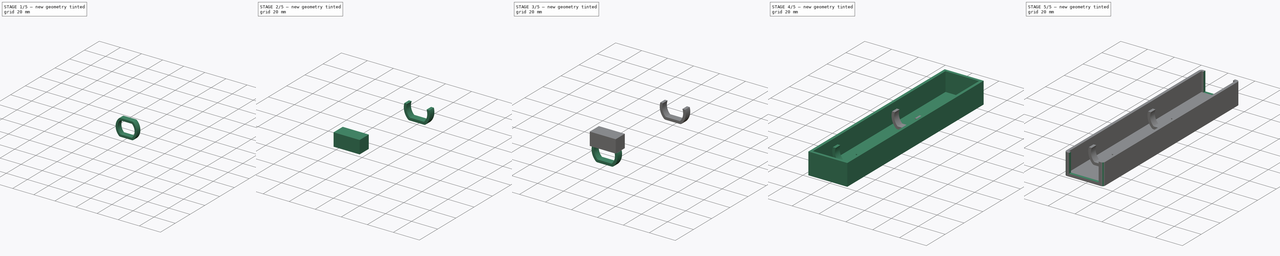
[diagram: build sequence overview — one tinted view per stage of 5, left to right]
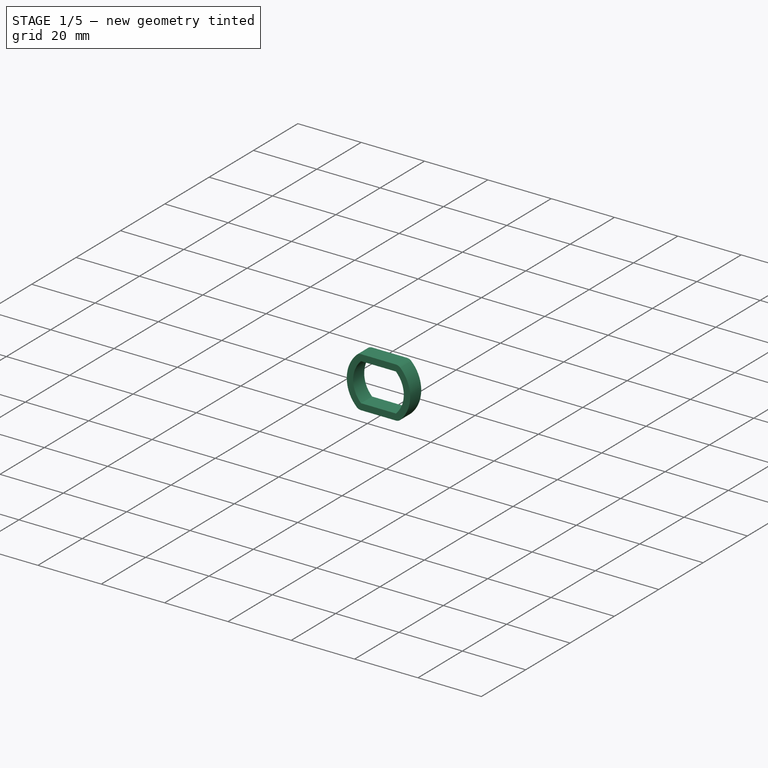
[diagram: stage 1 of 5 — iso view after this stage's code; geometry added in this stage tinted green]
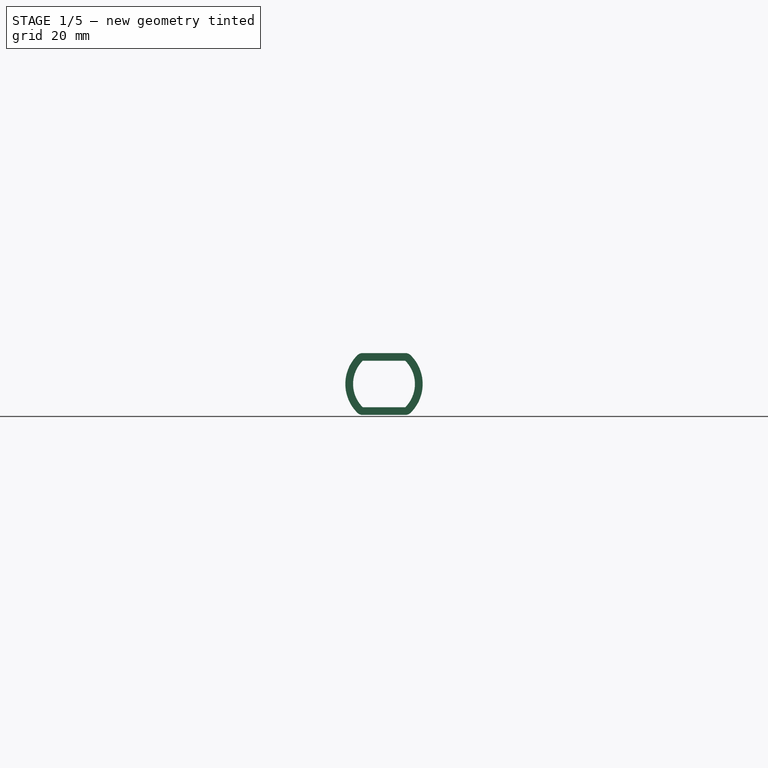
[diagram: stage 1 of 5 — front view after this stage's code; geometry added in this stage tinted green]
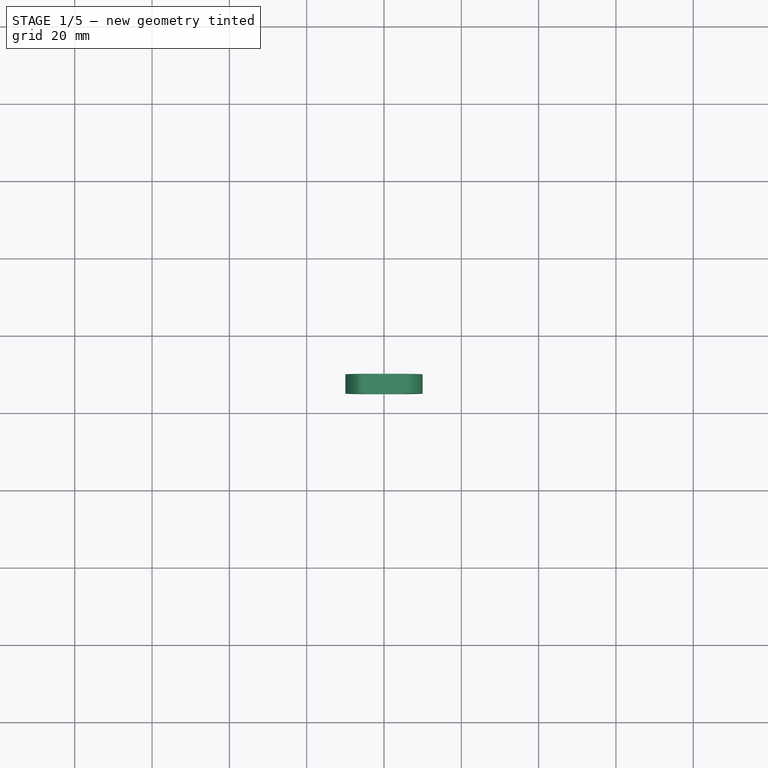
[diagram: stage 1 of 5 — top view after this stage's code; geometry added in this stage tinted green]
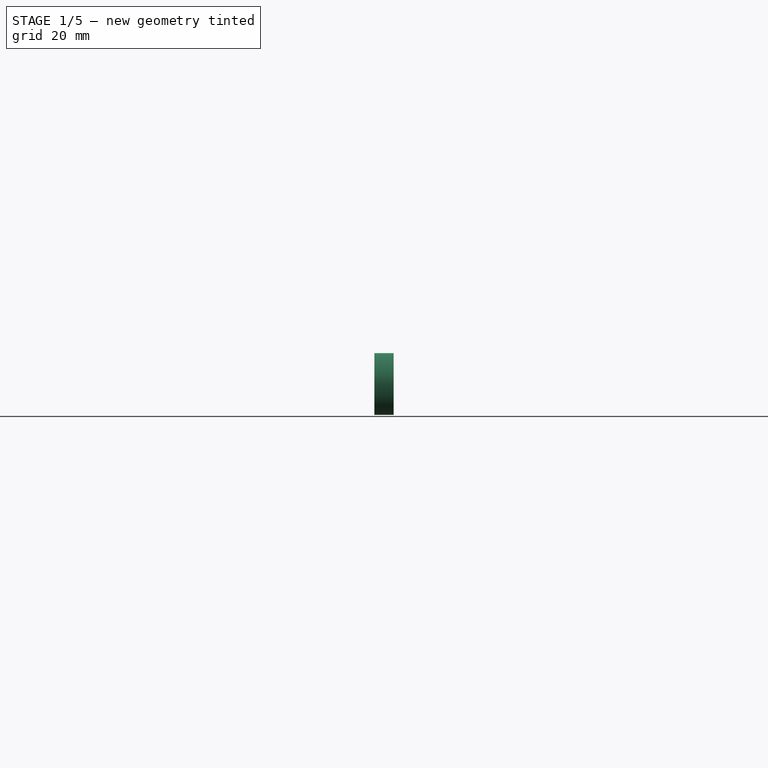
[diagram: stage 1 of 5 — right view after this stage's code; geometry added in this stage tinted green]
FCSTD DOCUMENT  (FreeCAD 0.19R24267 +99 (Git))
Label: windowOpener_actuatorCover
License: All rights reserved
LicenseURL: http://en.wikipedia.org/wiki/All_rights_reserved
objects: Sketcher::SketchObject×7, PartDesign::Pad×4, Part::Cut×4, PartDesign::Body×2, Part::Offset2D×2, Part::Extrusion×2, Part::Box×2, PartDesign::Fillet×1, PartDesign::Pocket×1, Part::MultiFuse×1
note: 32 computed .brp shape members not serialized (recipe doc carries the construction recipe); baked Part::Feature solids carry a one-line shape summary decoded from their .brp

FEATURE [Sketcher::SketchObject] Sketch005
  FullyConstrained = true
  MapMode = 5
  Placement = pos=(0,0,0) rot=(1,0,0;1.5708rad)
  sketch-geometry (6):
    g0: LineSegment StartX=-5.5 StartY=6 StartZ=0 EndX=5.5 EndY=6 EndZ=0
    g1: LineSegment StartX=-5.5 StartY=-6 StartZ=0 EndX=5.5 EndY=-6 EndZ=0
    g2: ArcOfCircle CenterX=0.45 CenterY=1e-16 CenterZ=0 NormalX=0 NormalY=0 NormalZ=1 AngleXU=0 Radius=8.45 StartAngle=2.35201 EndAngle=3.93117
    g3: GeomPoint X=-8 Y=0 Z=0
    g4: ArcOfCircle CenterX=-0.45 CenterY=1e-16 CenterZ=0 NormalX=0 NormalY=0 NormalZ=1 AngleXU=0 Radius=8.45 StartAngle=5.4936 EndAngle=7.07277
    g5: GeomPoint X=8 Y=0 Z=0
  constraints (14):
    c: DistanceX(g0,g0) = 11
    c: Symmetric(g0,g0,g-2)
    c: Symmetric(g1,g1,g-2)
    c: DistanceY(g1,g0) = 12
    c: Symmetric(g0,g1,g-1)
    c: Coincident(g2,g0)
    c: Coincident(g2,g1)
    c: PointOnObject(g3,g2)
    c: PointOnObject(g3,g-1)
    c: Coincident(g4,g0)
    c: Coincident(g4,g1)
    c: PointOnObject(g5,g4)
    c: DistanceX(g3,g5) = 16
    c: Symmetric(g5,g3,g-2)
FEATURE [Sketcher::SketchObject] Sketch006
  FullyConstrained = true
  MapMode = 5
  Placement = pos=(0,0,0) rot=(1,0,0;1.5708rad)
  sketch-geometry (6):
    g0: LineSegment StartX=-5.5 StartY=6 StartZ=0 EndX=5.5 EndY=6 EndZ=0
    g1: LineSegment StartX=-5.5 StartY=-6 StartZ=0 EndX=5.5 EndY=-6 EndZ=0
    g2: ArcOfCircle CenterX=0.45 CenterY=1e-16 CenterZ=0 NormalX=0 NormalY=0 NormalZ=1 AngleXU=0 Radius=8.45 StartAngle=2.35201 EndAngle=3.93117
    g3: GeomPoint X=-8 Y=0 Z=0
    g4: ArcOfCircle CenterX=-0.45 CenterY=1e-16 CenterZ=0 NormalX=0 NormalY=0 NormalZ=1 AngleXU=0 Radius=8.45 StartAngle=5.4936 EndAngle=7.07277
    g5: GeomPoint X=8 Y=0 Z=0
  constraints (14):
    c: DistanceX(g0,g0) = 11
    c: Symmetric(g0,g0,g-2)
    c: Symmetric(g1,g1,g-2)
    c: DistanceY(g1,g0) = 12
    c: Symmetric(g0,g1,g-1)
    c: Coincident(g2,g0)
    c: Coincident(g2,g1)
    c: PointOnObject(g3,g2)
    c: PointOnObject(g3,g-1)
    c: Coincident(g4,g0)
    c: Coincident(g4,g1)
    c: PointOnObject(g5,g4)
    c: DistanceX(g3,g5) = 16
    c: Symmetric(g5,g3,g-2)
FEATURE [Part::Offset2D] Offset2D001
  Fill = false
  Intersection = false
  Join = 0
  Mode = 1
  SelfIntersection = false
  Source = -> Sketch006
  Value = 2
FEATURE [Part::Extrusion] Extrude001
  Base = -> Offset2D001
  Dir = (0,-1,-2e-16)
  DirMode = 2
  FaceMakerClass = Part::FaceMakerBullseye
  LengthFwd = 5
  LengthRev = 0
  Solid = true
  Symmetric = false
FEATURE [PartDesign::Pad] Pad003
  Direction = (1,1,1)
  Length = 20
  Length2 = 100
  Placement = pos=(0,0,0) rot=(1,0,0;1.5708rad)
  Profile = -> Sketch005
  Type = 0
FEATURE [Part::Cut] Cut002
  Base = -> Extrude001
  Placement = pos=(0,10,7) rot=(0,0,1;0rad)
  Tool = -> Pad003
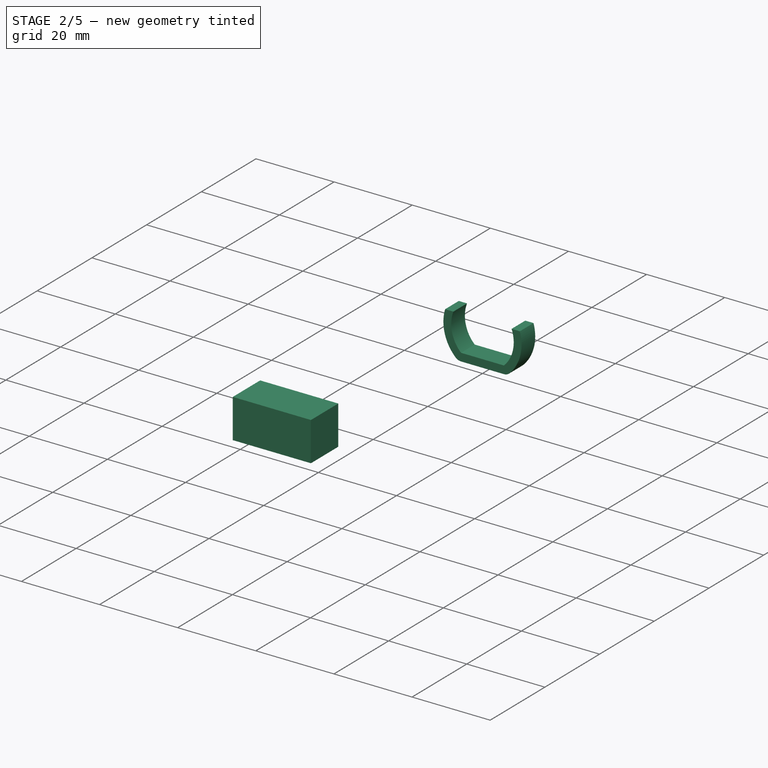
[diagram: stage 2 of 5 — iso view after this stage's code; geometry added in this stage tinted green]
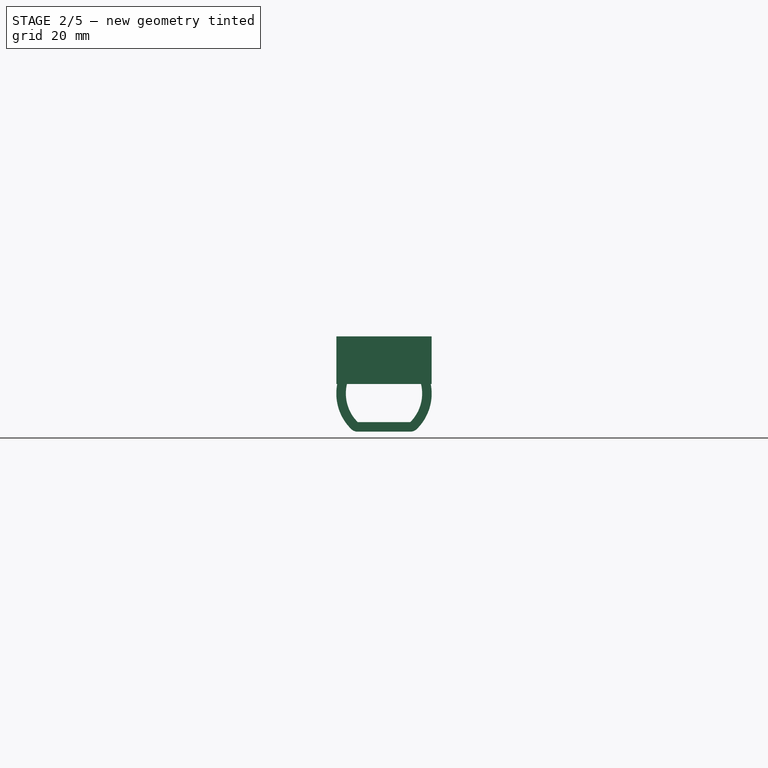
[diagram: stage 2 of 5 — front view after this stage's code; geometry added in this stage tinted green]
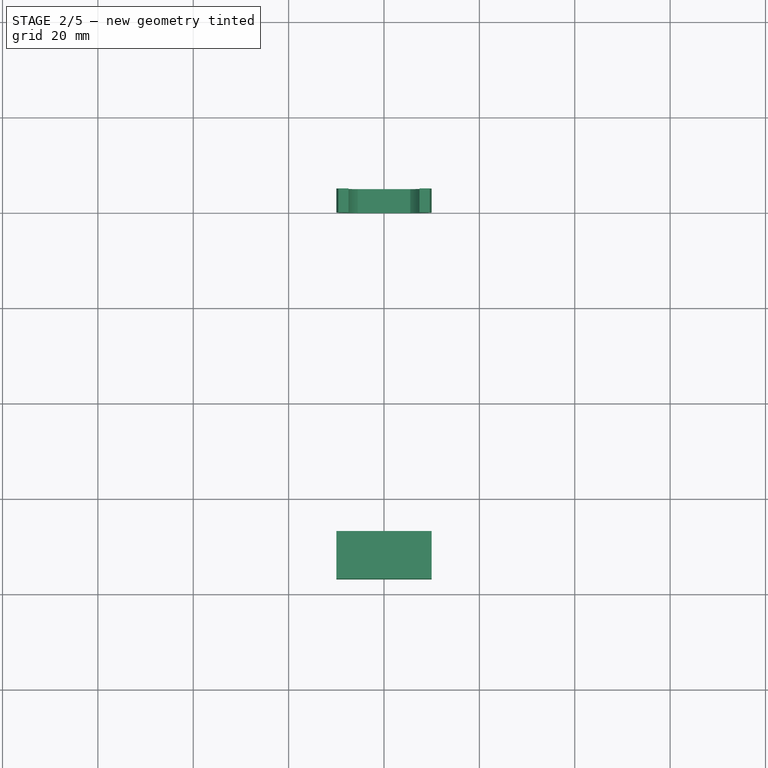
[diagram: stage 2 of 5 — top view after this stage's code; geometry added in this stage tinted green]
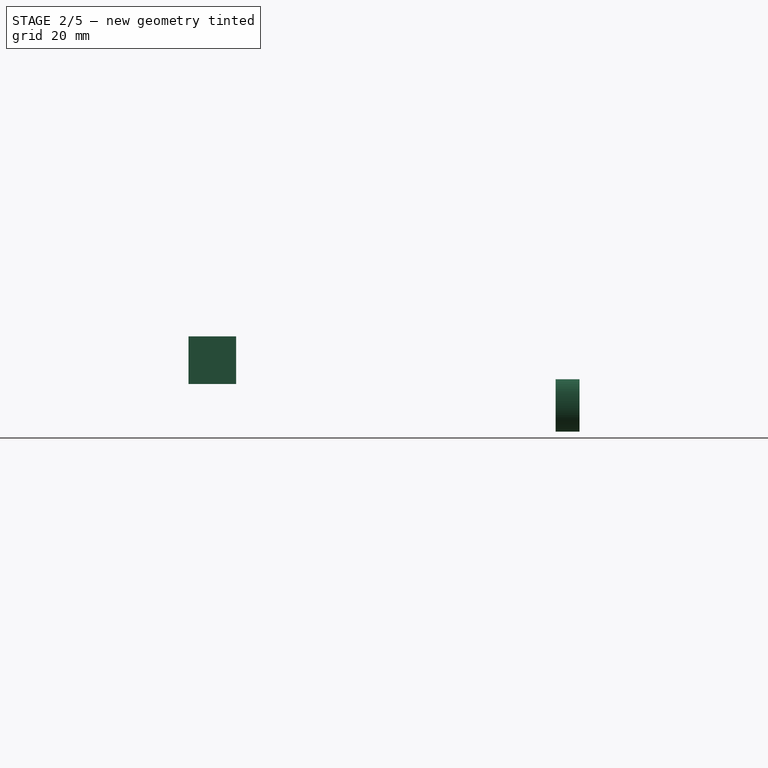
[diagram: stage 2 of 5 — right view after this stage's code; geometry added in this stage tinted green]
FEATURE [PartDesign::Body] Body001
  Group = -> [Sketch,Pad001,Sketch003,Pad002,Fillet,Sketch004,Pocket]
  Origin = -> Origin001
  Tip = -> Pocket
FEATURE [Part::Box] Box  label="Cube"
  AttacherType = Attacher::AttachEngine3D
  Height = 10
  Length = 20
  Placement = pos=(-10,3,10) rot=(0,0,1;0rad)
  Width = 10
FEATURE [Part::Box] Box001  label="Cube001"
  AttacherType = Attacher::AttachEngine3D
  Height = 10
  Length = 20
  Placement = pos=(-10,3,10) rot=(0,0,1;0rad)
  Width = 10
FEATURE [Part::Cut] Cut003
  Base = -> Cut002
  Placement = pos=(0,75,1) rot=(0,0,1;0rad)
  Tool = -> Box001
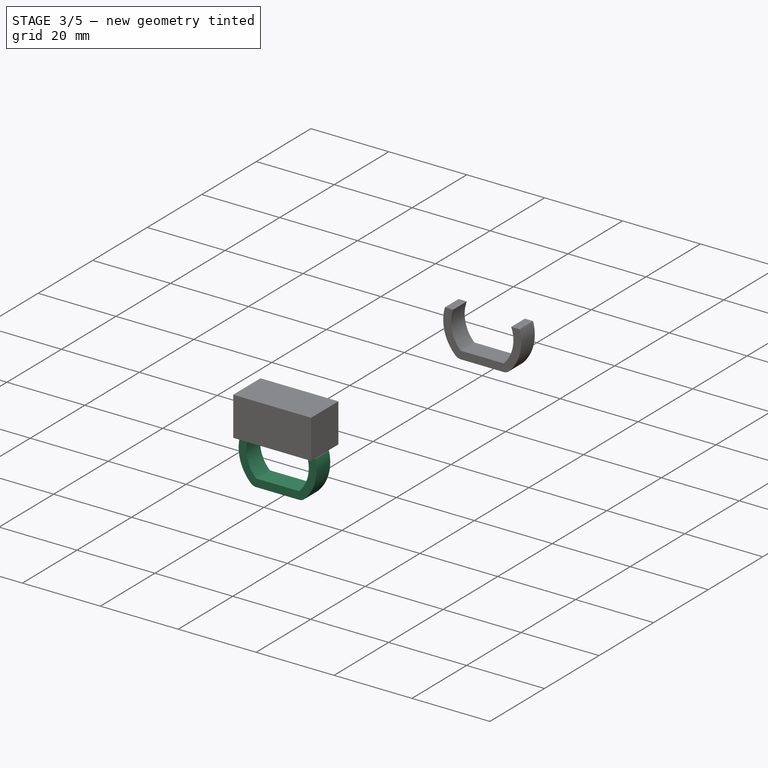
[diagram: stage 3 of 5 — iso view after this stage's code; geometry added in this stage tinted green]
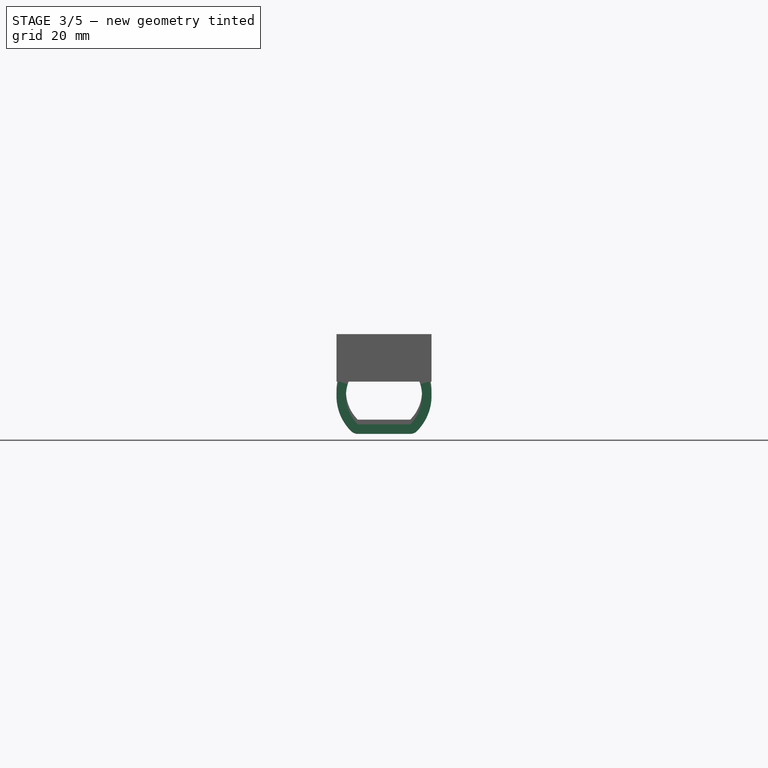
[diagram: stage 3 of 5 — front view after this stage's code; geometry added in this stage tinted green]
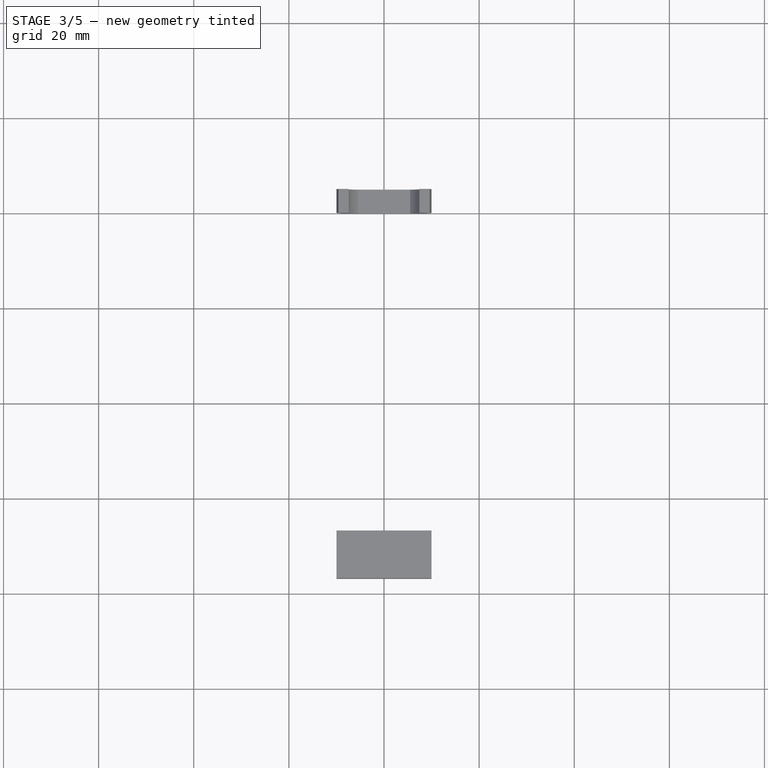
[diagram: stage 3 of 5 — top view after this stage's code; geometry added in this stage tinted green]
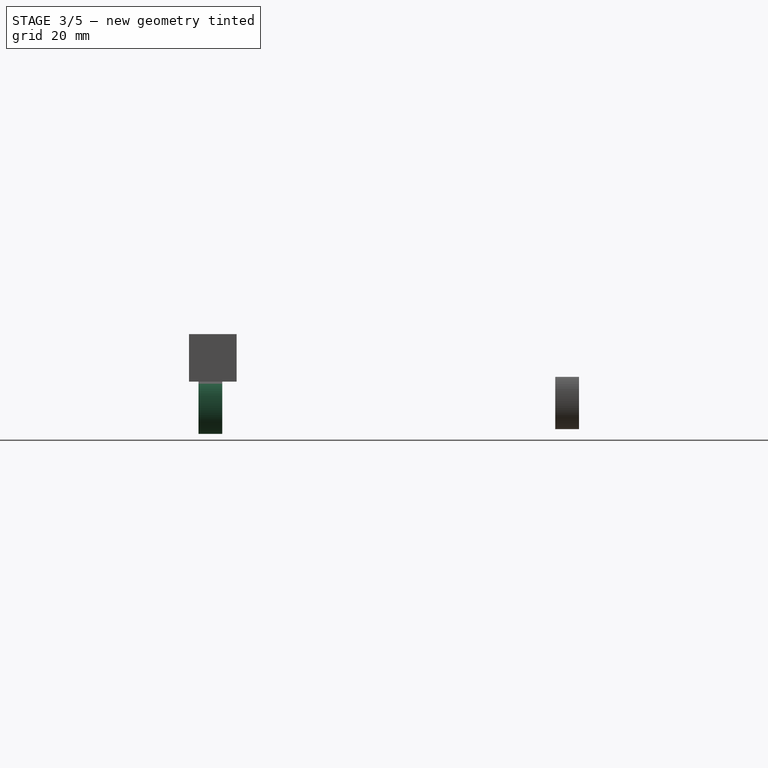
[diagram: stage 3 of 5 — right view after this stage's code; geometry added in this stage tinted green]
FEATURE [Sketcher::SketchObject] Sketch001
  FullyConstrained = true
  MapMode = 5
  Placement = pos=(0,0,0) rot=(1,0,0;1.5708rad)
  Support = -> [XZ_Plane]
  sketch-geometry (6):
    g0: LineSegment StartX=-5.5 StartY=6 StartZ=0 EndX=5.5 EndY=6 EndZ=0
    g1: LineSegment StartX=-5.5 StartY=-6 StartZ=0 EndX=5.5 EndY=-6 EndZ=0
    g2: ArcOfCircle CenterX=0.45 CenterY=1e-16 CenterZ=0 NormalX=0 NormalY=0 NormalZ=1 AngleXU=0 Radius=8.45 StartAngle=2.35201 EndAngle=3.93117
    g3: GeomPoint X=-8 Y=0 Z=0
    g4: ArcOfCircle CenterX=-0.45 CenterY=1e-16 CenterZ=0 NormalX=0 NormalY=0 NormalZ=1 AngleXU=0 Radius=8.45 StartAngle=5.4936 EndAngle=7.07277
    g5: GeomPoint X=8 Y=0 Z=0
  constraints (14):
    c: DistanceX(g0,g0) = 11
    c: Symmetric(g0,g0,g-2)
    c: Symmetric(g1,g1,g-2)
    c: DistanceY(g1,g0) = 12
    c: Symmetric(g0,g1,g-1)
    c: Coincident(g2,g0)
    c: Coincident(g2,g1)
    c: PointOnObject(g3,g2)
    c: PointOnObject(g3,g-1)
    c: Coincident(g4,g0)
    c: Coincident(g4,g1)
    c: PointOnObject(g5,g4)
    c: DistanceX(g3,g5) = 16
    c: Symmetric(g5,g3,g-2)
FEATURE [PartDesign::Pad] Pad
  Direction = (1,1,1)
  Length = 20
  Length2 = 100
  Placement = pos=(0,0,0) rot=(1,0,0;1.5708rad)
  Profile = -> Sketch001
  Type = 0
FEATURE [Sketcher::SketchObject] Sketch002
  FullyConstrained = true
  MapMode = 5
  Placement = pos=(0,0,0) rot=(1,0,0;1.5708rad)
  sketch-geometry (6):
    g0: LineSegment StartX=-5.5 StartY=6 StartZ=0 EndX=5.5 EndY=6 EndZ=0
    g1: LineSegment StartX=-5.5 StartY=-6 StartZ=0 EndX=5.5 EndY=-6 EndZ=0
    g2: ArcOfCircle CenterX=0.45 CenterY=1e-16 CenterZ=0 NormalX=0 NormalY=0 NormalZ=1 AngleXU=0 Radius=8.45 StartAngle=2.35201 EndAngle=3.93117
    g3: GeomPoint X=-8 Y=0 Z=0
    g4: ArcOfCircle CenterX=-0.45 CenterY=1e-16 CenterZ=0 NormalX=0 NormalY=0 NormalZ=1 AngleXU=0 Radius=8.45 StartAngle=5.4936 EndAngle=7.07277
    g5: GeomPoint X=8 Y=0 Z=0
  constraints (14):
    c: DistanceX(g0,g0) = 11
    c: Symmetric(g0,g0,g-2)
    c: Symmetric(g1,g1,g-2)
    c: DistanceY(g1,g0) = 12
    c: Symmetric(g0,g1,g-1)
    c: Coincident(g2,g0)
    c: Coincident(g2,g1)
    c: PointOnObject(g3,g2)
    c: PointOnObject(g3,g-1)
    c: Coincident(g4,g0)
    c: Coincident(g4,g1)
    c: PointOnObject(g5,g4)
    c: DistanceX(g3,g5) = 16
    c: Symmetric(g5,g3,g-2)
FEATURE [PartDesign::Body] Body
  Group = -> [Sketch001,Pad,Sketch002]
  Origin = -> Origin
  Tip = -> Pad
FEATURE [Part::Offset2D] Offset2D
  Fill = false
  Intersection = false
  Join = 0
  Mode = 1
  SelfIntersection = false
  Source = -> Sketch002
  Value = 2
FEATURE [Part::Extrusion] Extrude
  Base = -> Offset2D
  Dir = (0,-1,-2e-16)
  DirMode = 2
  FaceMakerClass = Part::FaceMakerBullseye
  LengthFwd = 5
  LengthRev = 0
  Solid = true
  Symmetric = false
FEATURE [Part::Cut] Cut
  Base = -> Extrude
  Placement = pos=(0,10,7) rot=(0,0,1;0rad)
  Tool = -> Pad
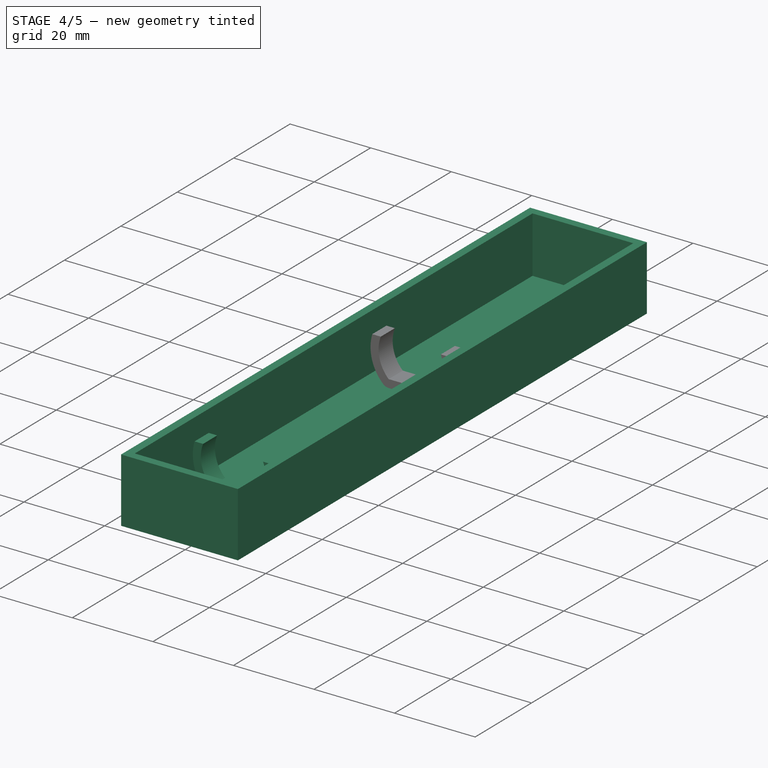
[diagram: stage 4 of 5 — iso view after this stage's code; geometry added in this stage tinted green]
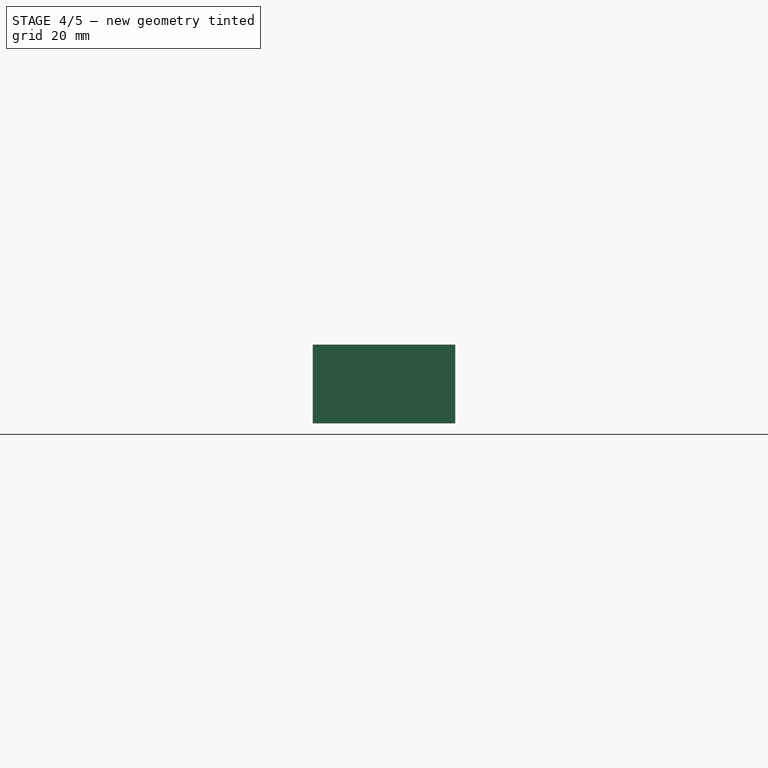
[diagram: stage 4 of 5 — front view after this stage's code; geometry added in this stage tinted green]
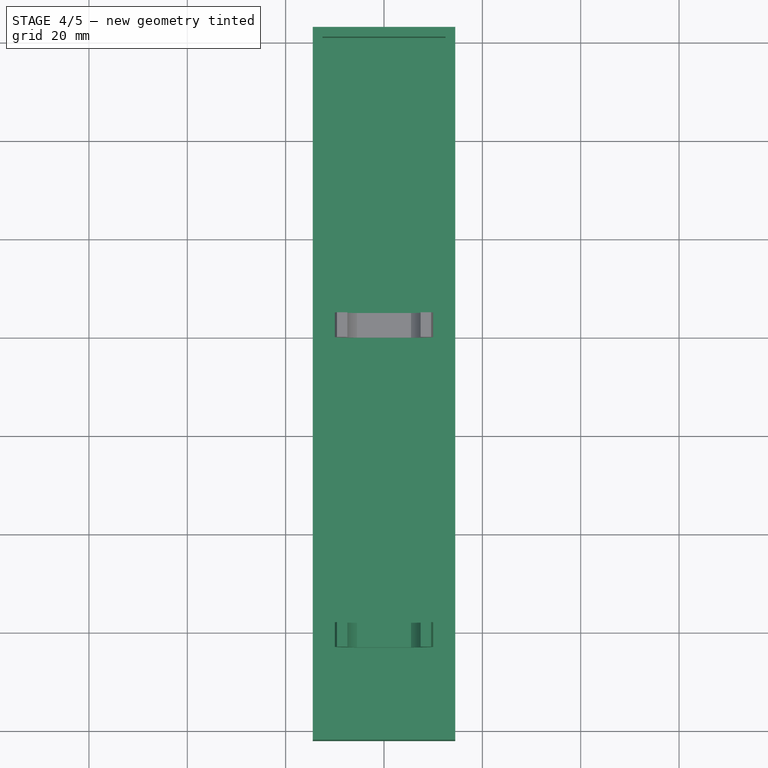
[diagram: stage 4 of 5 — top view after this stage's code; geometry added in this stage tinted green]
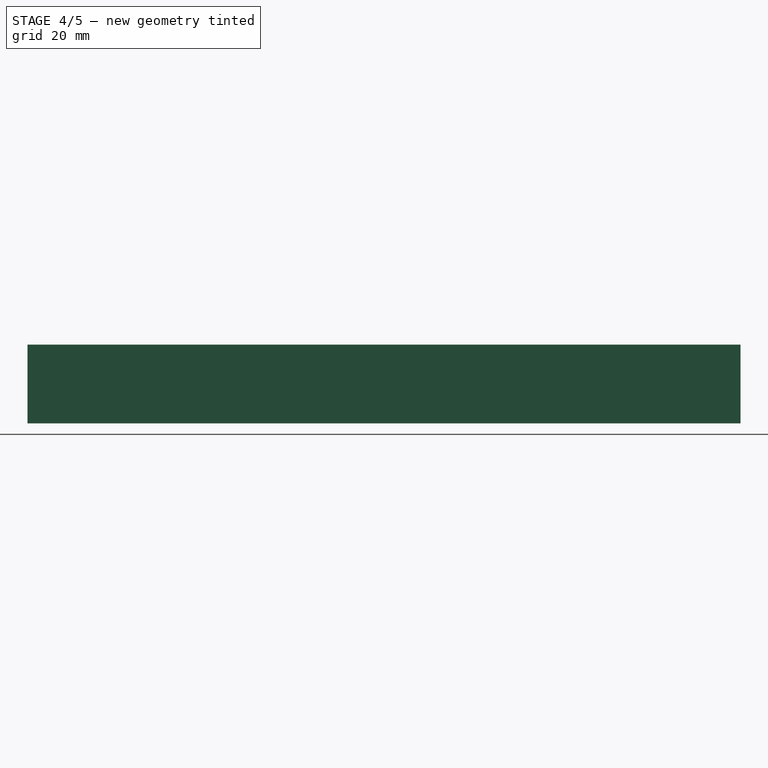
[diagram: stage 4 of 5 — right view after this stage's code; geometry added in this stage tinted green]
FEATURE [Sketcher::SketchObject] Sketch
  FullyConstrained = true
  MapMode = 5
  Support = -> [XY_Plane001]
  sketch-geometry (8):
    g0: LineSegment StartX=-12.5 StartY=0 StartZ=0 EndX=12.5 EndY=0 EndZ=0
    g1: LineSegment StartX=12.5 StartY=0 StartZ=0 EndX=12.5 EndY=141 EndZ=0
    g2: LineSegment StartX=12.5 StartY=141 StartZ=0 EndX=-12.5 EndY=141 EndZ=0
    g3: LineSegment StartX=-12.5 StartY=141 StartZ=0 EndX=-12.5 EndY=0 EndZ=0
    g4: LineSegment StartX=-14.5 StartY=143 StartZ=0 EndX=14.5 EndY=143 EndZ=0
    g5: LineSegment StartX=14.5 StartY=143 StartZ=0 EndX=14.5 EndY=-2 EndZ=0
    g6: LineSegment StartX=14.5 StartY=-2 StartZ=0 EndX=-14.5 EndY=-2 EndZ=0
    g7: LineSegment StartX=-14.5 StartY=-2 StartZ=0 EndX=-14.5 EndY=143 EndZ=0
  constraints (23):
    c: Coincident(g0,g1)
    c: Coincident(g1,g2)
    c: Coincident(g2,g3)
    c: Coincident(g3,g0)
    c: Horizontal(g0)
    c: Vertical(g1)
    c: Vertical(g3)
    c: Symmetric(g2,g1,g-2)
    c: DistanceX(g2,g1) = 25
    c: DistanceY(g1) = 141
    c: PointOnObject(g0,g-1)
    c: Coincident(g4,g5)
    c: Coincident(g5,g6)
    c: Coincident(g6,g7)
    c: Coincident(g7,g4)
    c: Horizontal(g4)
    c: Horizontal(g6)
    c: Vertical(g5)
    c: Vertical(g7)
    c: DistanceX(g6,g0) = 2
    c: DistanceY(g6,g0) = 2
    c: DistanceX(g1,g4) = 2
    c: DistanceY(g1,g4) = 2
FEATURE [PartDesign::Pad] Pad001
  Direction = (1,1,1)
  Length = 14
  Length2 = 100
  Profile = -> Sketch
  Type = 0
FEATURE [Sketcher::SketchObject] Sketch003
  FullyConstrained = true
  MapMode = 5
  Support = -> [XY_Plane001]
  sketch-geometry (4):
    g0: LineSegment StartX=-14.5 StartY=143 StartZ=0 EndX=14.5 EndY=143 EndZ=0
    g1: LineSegment StartX=14.5 StartY=143 StartZ=0 EndX=14.5 EndY=-2 EndZ=0
    g2: LineSegment StartX=14.5 StartY=-2 StartZ=0 EndX=-14.5 EndY=-2 EndZ=0
    g3: LineSegment StartX=-14.5 StartY=-2 StartZ=0 EndX=-14.5 EndY=143 EndZ=0
  constraints (11):
    c: Coincident(g0,g1)
    c: Coincident(g1,g2)
    c: Coincident(g2,g3)
    c: Coincident(g3,g0)
    c: Horizontal(g0)
    c: Vertical(g1)
    c: Vertical(g3)
    c: DistanceY(g2,g-1) = 2
    c: Symmetric(g2,g1,g-2)
    c: DistanceX(g2,g1) = 29
    c: DistanceY(g2,g0) = 145
FEATURE [PartDesign::Pad] Pad002
  BaseFeature = -> Pad001
  Direction = (1,1,1)
  Length = 2
  Length2 = 100
  Profile = -> Sketch003
  Reversed = true
  Type = 0
FEATURE [Part::Cut] Cut001
  Base = -> Cut
  Placement = pos=(0,12,1) rot=(0,0,1;0rad)
  Tool = -> Box
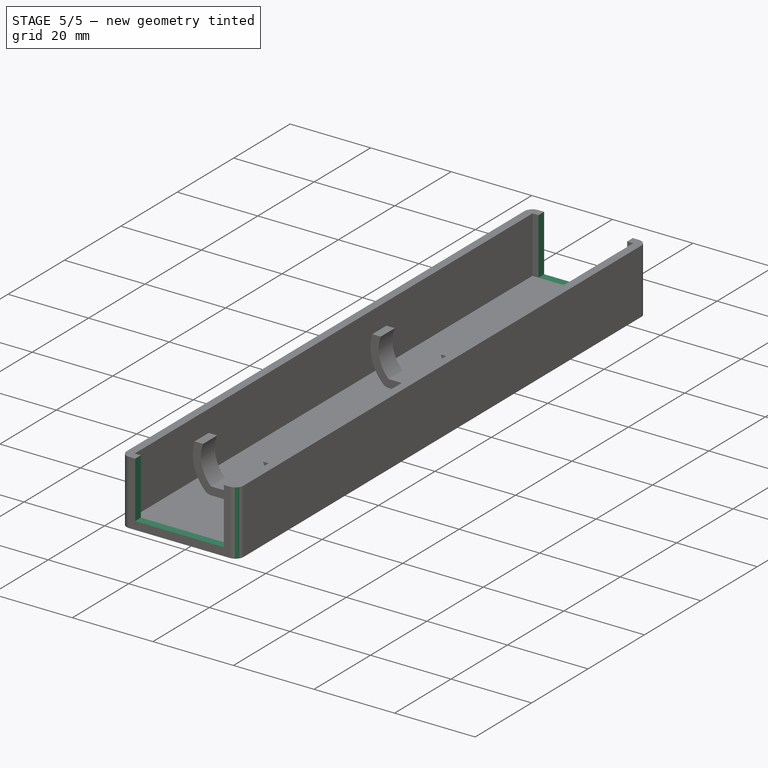
[diagram: stage 5 of 5 — iso view after this stage's code; geometry added in this stage tinted green]
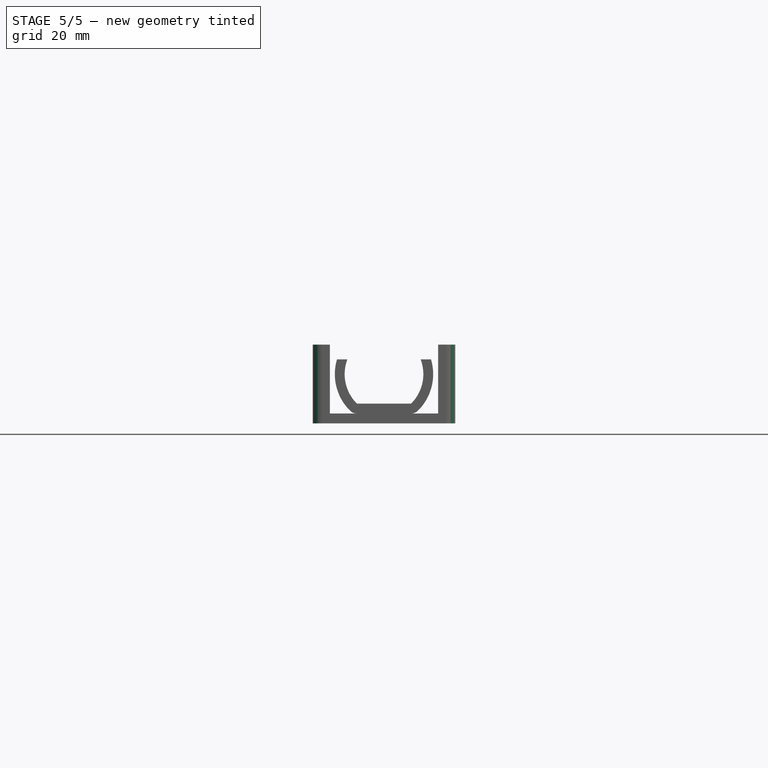
[diagram: stage 5 of 5 — front view after this stage's code; geometry added in this stage tinted green]
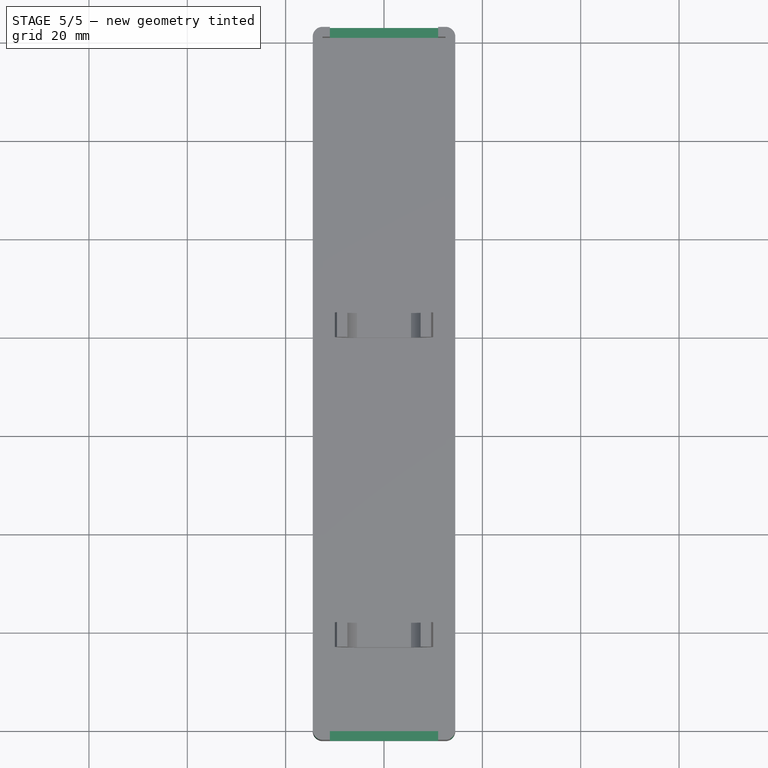
[diagram: stage 5 of 5 — top view after this stage's code; geometry added in this stage tinted green]
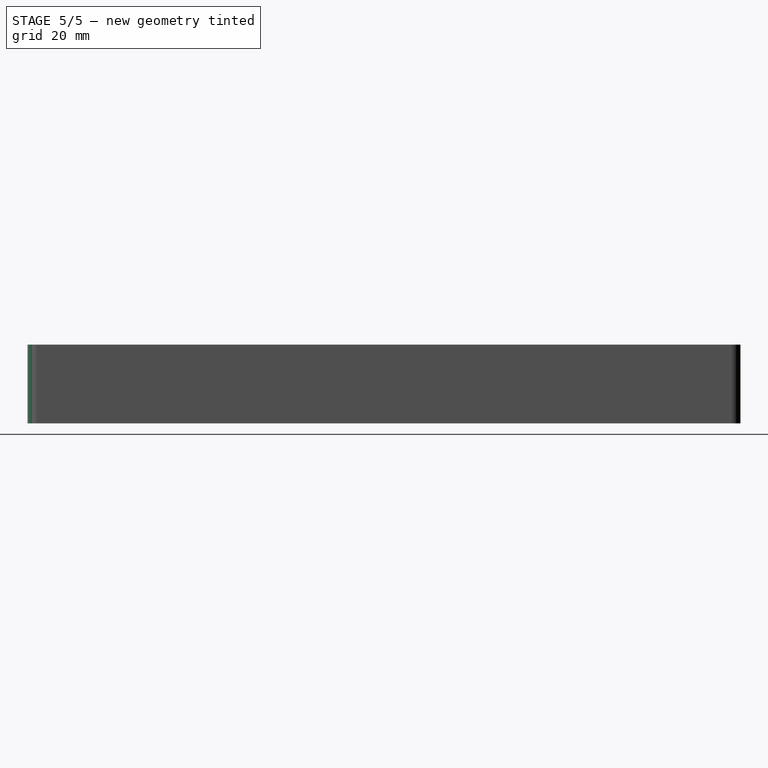
[diagram: stage 5 of 5 — right view after this stage's code; geometry added in this stage tinted green]
FEATURE [PartDesign::Fillet] Fillet
  Base = -> Pad002 [Edge1,Edge11,Edge5,Edge20,Edge8,Edge22,Edge2,Edge12]
  BaseFeature = -> Pad002
  Radius = 2
  SupportTransform = false
FEATURE [Sketcher::SketchObject] Sketch004
  FullyConstrained = true
  MapMode = 5
  Placement = pos=(0,143,0) rot=(0,0.707107,0.707107;3.14159rad)
  Support = -> [Fillet]
  sketch-geometry (4):
    g0: LineSegment StartX=-11 StartY=16 StartZ=0 EndX=11 EndY=16 EndZ=0
    g1: LineSegment StartX=11 StartY=16 StartZ=0 EndX=11 EndY=0 EndZ=0
    g2: LineSegment StartX=11 StartY=0 StartZ=0 EndX=-11 EndY=0 EndZ=0
    g3: LineSegment StartX=-11 StartY=0 StartZ=0 EndX=-11 EndY=16 EndZ=0
  constraints (11):
    c: Coincident(g0,g1)
    c: Coincident(g1,g2)
    c: Coincident(g2,g3)
    c: Coincident(g3,g0)
    c: Horizontal(g0)
    c: Vertical(g1)
    c: Vertical(g3)
    c: PointOnObject(g1,g-1)
    c: Symmetric(g1,g2,g-2)
    c: DistanceX(g2,g1) = 22
    c: DistanceY(g2,g0) = 16
FEATURE [PartDesign::Pocket] Pocket
  BaseFeature = -> Fillet
  Length = 5
  Length2 = 100
  Profile = -> Sketch004
  Type = 1
FEATURE [Part::MultiFuse] Fusion
  Shapes = -> [Body001,Cut001,Cut003]
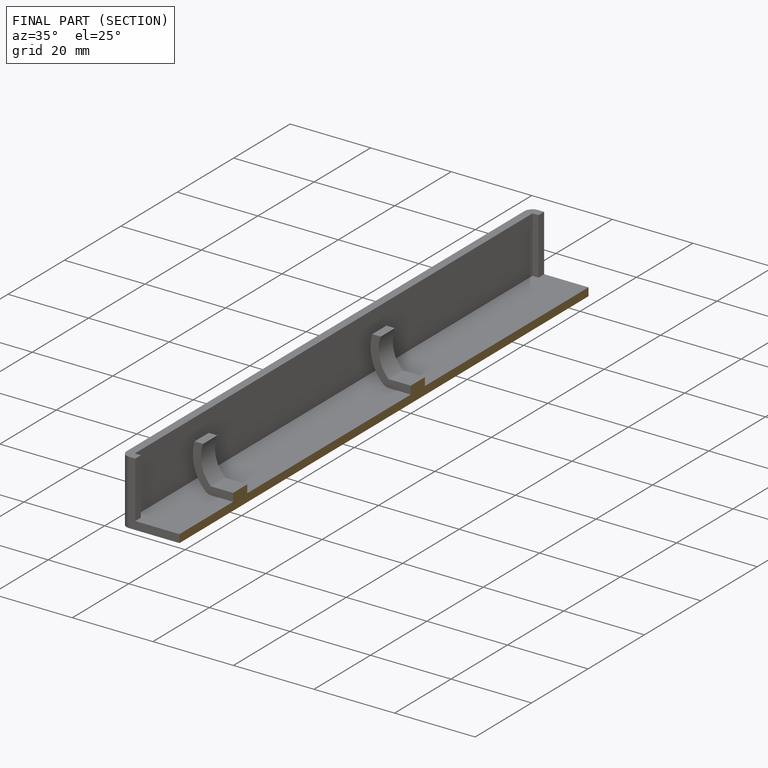
[diagram: finished part — half-section view (interior)]
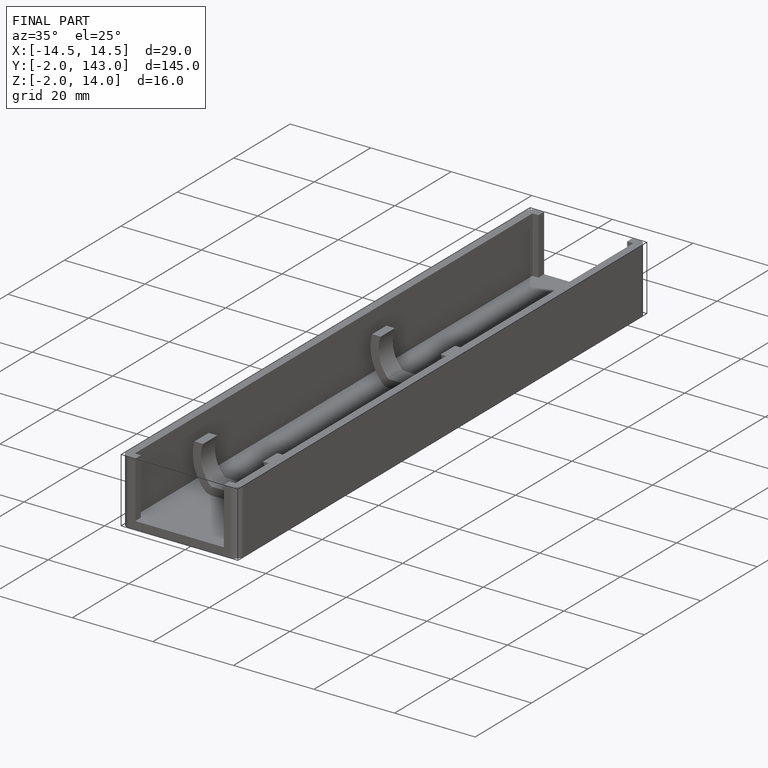
[diagram: finished part — iso view with bounding-box wireframe]
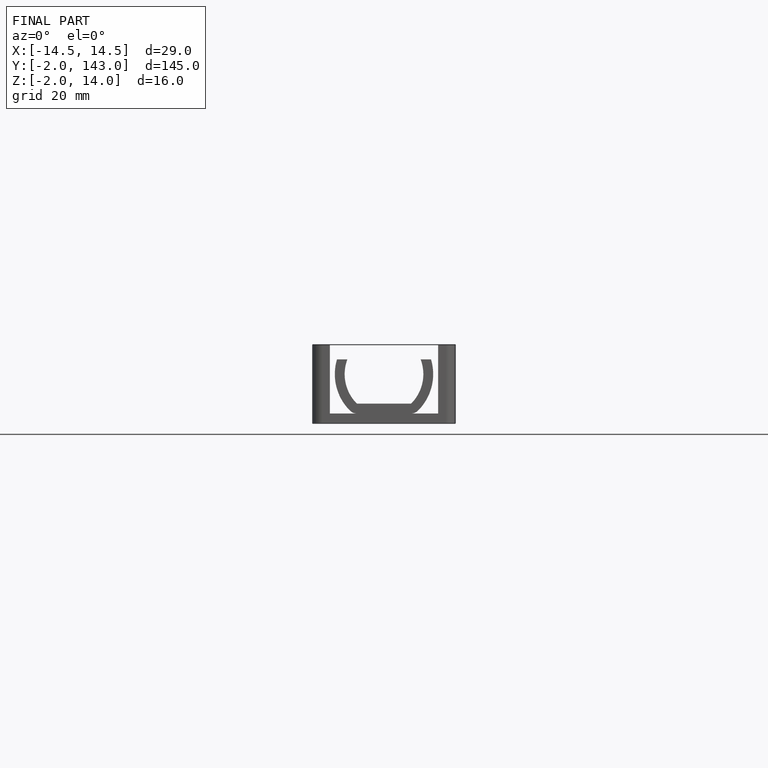
[diagram: finished part — front view with bounding-box wireframe]
